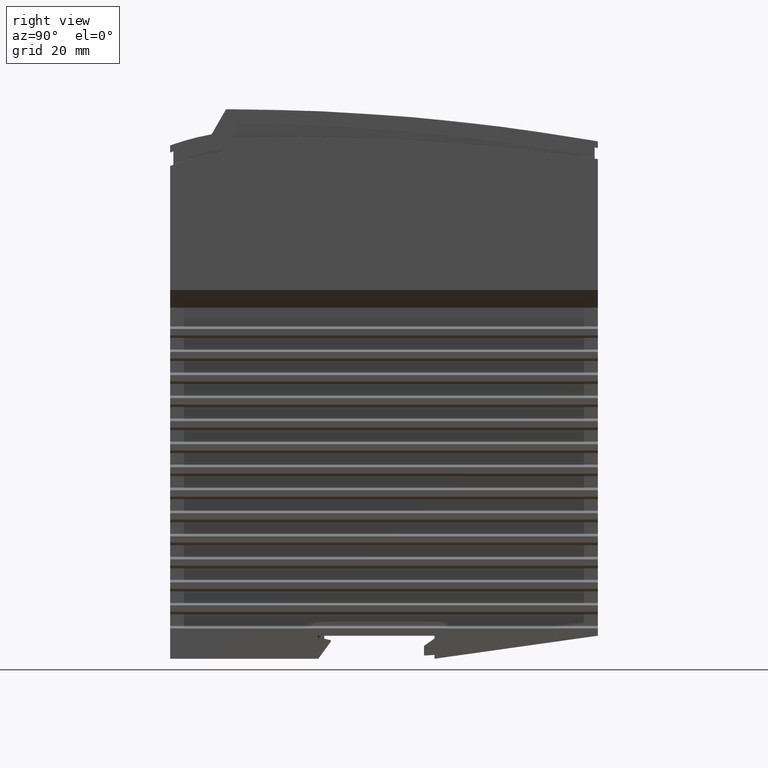
[diagram: clean part render]
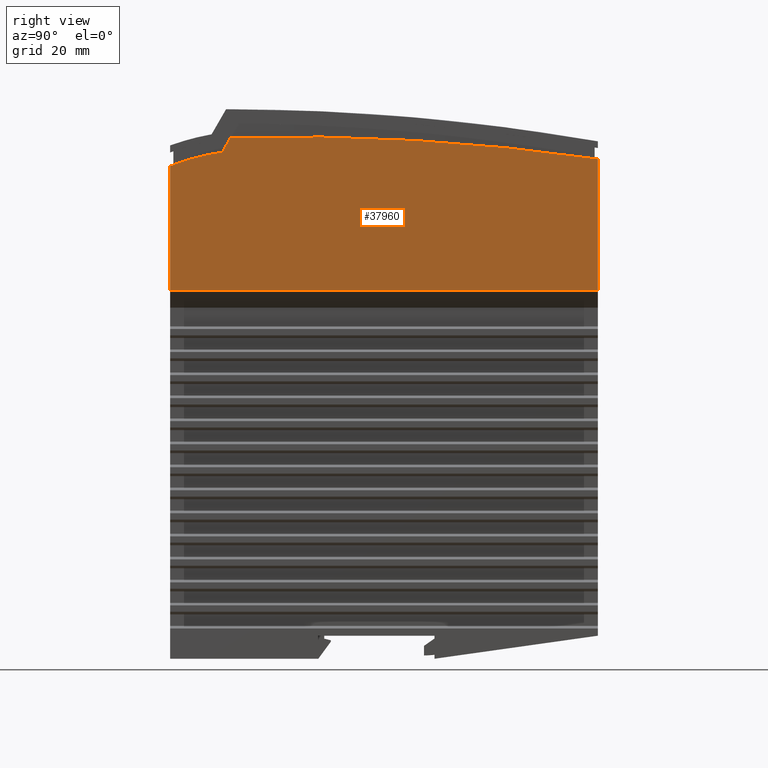
[diagram: same view with one face highlighted and labeled with its STEP entity id]
A machine part, right view. The second image highlights one B-rep face of the part: STEP entity #37960.
In plain terms, the highlighted planar face has unit normal (1, 0, 0).
Its self-contained STEP definition (entity closure, byte-faithful):
#1480=CARTESIAN_POINT('',(-504.,36.,-63.5));
#1490=DIRECTION('',(0.,0.,1.));
#1500=DIRECTION('',(1.,0.,0.));
#1510=AXIS2_PLACEMENT_3D('',#1480,#1490,#1500);
#1520=CIRCLE('',#1510,655.6270807403);
#1530=CARTESIAN_POINT('',(151.390000000037,18.3700000000087,-63.5));
#1540=VERTEX_POINT('',#1530);
#1550=CARTESIAN_POINT('',(144.853503496781,130.,-63.5));
#1560=VERTEX_POINT('',#1550);
#1570=EDGE_CURVE('',#1540,#1560,#1520,.T.);
#3430=CARTESIAN_POINT('',(146.969994064791,15.8256832876613,-63.5));
#3440=VERTEX_POINT('',#3430);
#3470=CARTESIAN_POINT('',(78.52,25.64,-63.5));
#3480=DIRECTION('',(0.,0.,1.));
#3490=DIRECTION('',(1.,0.,0.));
#3500=AXIS2_PLACEMENT_3D('',#3470,#3480,#3490);
#3510=CIRCLE('',#3500,69.15);
#3520=CARTESIAN_POINT('',(142.740813604314,-1.4210854715202E-14,-63.5));
#3530=VERTEX_POINT('',#3520);
#3540=EDGE_CURVE('',#3530,#3440,#3510,.T.);
#36470=CARTESIAN_POINT('',(105.0709804639,130.,-63.5));
#36480=DIRECTION('',(0.,0.,-1.));
#36490=DIRECTION('',(1.,0.,0.));
#36500=AXIS2_PLACEMENT_3D('',#36470,#36480,#36490);
#36510=PLANE('',#36500);
#37640=CARTESIAN_POINT('',(128.90472881771,0.,-63.5));
#37650=DIRECTION('',(-1.,0.,0.));
#37660=VECTOR('',#37650,1.);
#37670=LINE('',#37640,#37660);
#37680=CARTESIAN_POINT('',(105.070980463874,0.,-63.5));
#37690=VERTEX_POINT('',#37680);
#37700=EDGE_CURVE('',#3530,#37690,#37670,.T.);
#37710=ORIENTED_EDGE('',*,*,#37700,.T.);
#37720=ORIENTED_EDGE('',*,*,#3540,.F.);
#37730=CARTESIAN_POINT('',(128.90472881771,5.42665736895805,-63.5));
#37740=DIRECTION('',(-0.86666783043328,-0.498885629871288,0.));
#37750=VECTOR('',#37740,1.);
#37760=LINE('',#37730,#37750);
#37770=EDGE_CURVE('',#1540,#3440,#37760,.T.);
#37780=ORIENTED_EDGE('',*,*,#37770,.T.);
#37790=ORIENTED_EDGE('',*,*,#1570,.F.);
#37800=CARTESIAN_POINT('',(128.90472881771,130.,-63.5));
#37810=DIRECTION('',(-1.,0.,0.));
#37820=VECTOR('',#37810,1.);
#37830=LINE('',#37800,#37820);
#37840=CARTESIAN_POINT('',(105.070980463874,130.,-63.5));
#37850=VERTEX_POINT('',#37840);
#37860=EDGE_CURVE('',#1560,#37850,#37830,.T.);
#37870=ORIENTED_EDGE('',*,*,#37860,.F.);
#37880=CARTESIAN_POINT('',(105.070980463874,64.9999998943551,-63.5));
#37890=DIRECTION('',(0.,1.,0.));
#37900=VECTOR('',#37890,1.);
#37910=LINE('',#37880,#37900);
#37920=EDGE_CURVE('',#37690,#37850,#37910,.T.);
#37930=ORIENTED_EDGE('',*,*,#37920,.T.);
#37940=EDGE_LOOP('',(#37930,#37870,#37790,#37780,#37720,#37710));
#37950=FACE_OUTER_BOUND('',#37940,.T.);
#37960=ADVANCED_FACE('',(#37950),#36510,.T.);